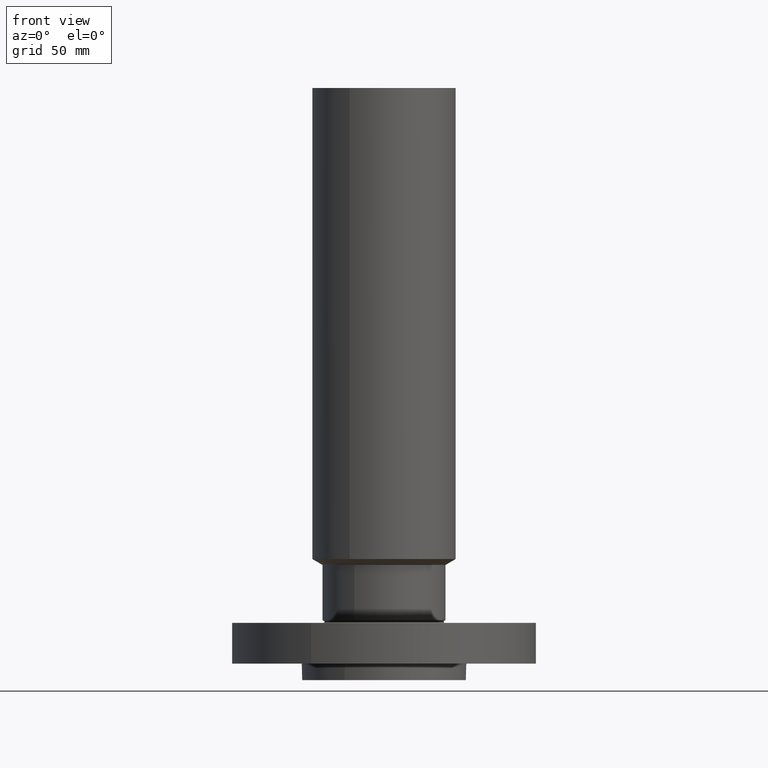
[diagram: clean part render]
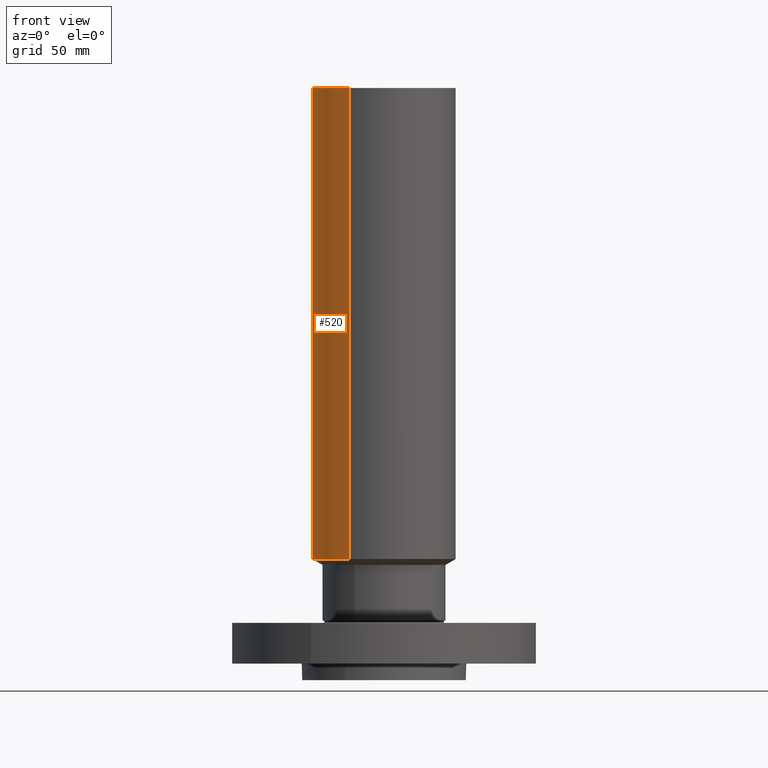
[diagram: same view with one face highlighted and labeled with its STEP entity id]
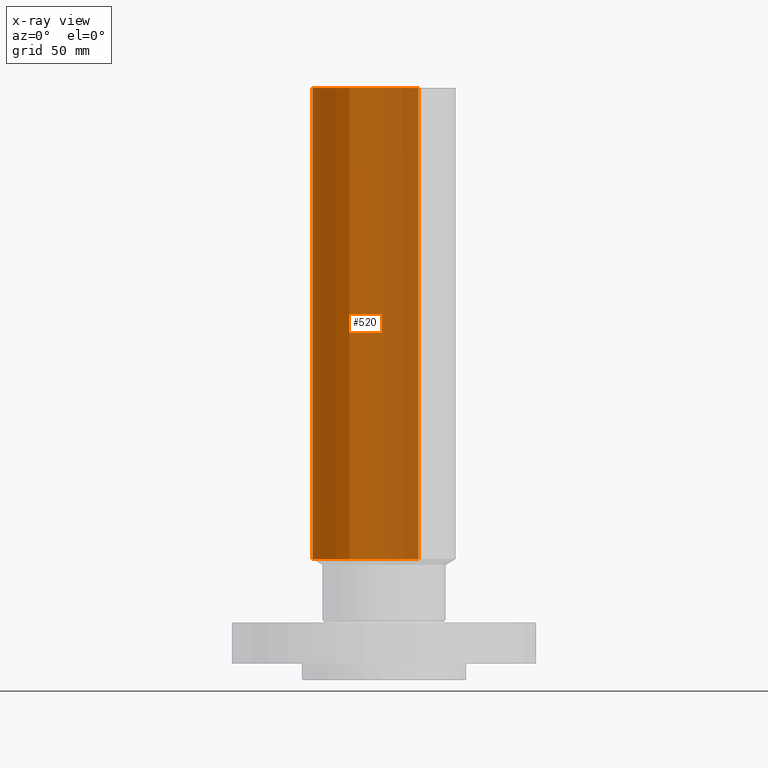
[diagram: x-ray of the same camera — body ghosted, the highlighted face saturated]
A machine part, front view. The second image highlights one B-rep face of the part: STEP entity #520.
The next image is the same camera in x-ray: the body ghosted, the highlighted face saturated — about 65% of this face is hidden behind the body in this view.
In plain terms, the highlighted cylindrical surface (partial cylindrical patch) has radius 27.813 mm, axis along (0, 0, -1).
Its self-contained STEP definition (entity closure, byte-faithful):
#468=AXIS2_PLACEMENT_3D('Circle Axis2P3D',#466,#467,$) ;
#481=AXIS2_PLACEMENT_3D('Cylinder Axis2P3D',#478,#479,#480) ;
#511=AXIS2_PLACEMENT_3D('Circle Axis2P3D',#509,#510,$) ;
#444=CARTESIAN_POINT('Vertex',(0.524970964774,0.960952905274,1.58948929173)) ;
#451=CARTESIAN_POINT('Vertex',(-0.524970964774,-0.960952905274,1.58948929173)) ;
#466=CARTESIAN_POINT('Axis2P3D Location',(0.,0.,1.58948929173)) ;
#478=CARTESIAN_POINT('Axis2P3D Location',(0.,0.,4.25000000002)) ;
#483=CARTESIAN_POINT('Line Origine',(0.524970964774,0.960952905274,5.16974464588)) ;
#487=CARTESIAN_POINT('Vertex',(0.524970964774,0.960952905274,8.75000000004)) ;
#494=CARTESIAN_POINT('Vertex',(-0.524970964774,-0.960952905274,8.75000000004)) ;
#497=CARTESIAN_POINT('Line Origine',(-0.524970964774,-0.960952905274,5.16974464588)) ;
#509=CARTESIAN_POINT('Axis2P3D Location',(0.,0.,8.75000000003)) ;
#467=DIRECTION('Axis2P3D Direction',(-0.,0.,0.0393700787402)) ;
#479=DIRECTION('Axis2P3D Direction',(0.,0.,-0.0393700787402)) ;
#480=DIRECTION('Axis2P3D XDirection',(-0.0188750212049,-0.0345504945626,0.)) ;
#484=DIRECTION('Vector Direction',(0.,0.,-0.0393700787402)) ;
#498=DIRECTION('Vector Direction',(0.,0.,-0.0393700787402)) ;
#510=DIRECTION('Axis2P3D Direction',(0.,0.,-0.0393700787402)) ;
#485=VECTOR('Line Direction',#484,0.0393700787402) ;
#499=VECTOR('Line Direction',#498,0.0393700787402) ;
#515=ORIENTED_EDGE('',*,*,#470,.F.) ;
#516=ORIENTED_EDGE('',*,*,#501,.T.) ;
#517=ORIENTED_EDGE('',*,*,#513,.T.) ;
#518=ORIENTED_EDGE('',*,*,#489,.F.) ;
#520=ADVANCED_FACE('PartBody',(#519),#482,.T.) ;
#469=CIRCLE('generated circle',#468,1.095) ;
#512=CIRCLE('generated circle',#511,1.095) ;
#482=CYLINDRICAL_SURFACE('generated cylinder',#481,1.095) ;
#470=EDGE_CURVE('',#452,#445,#469,.F.) ;
#489=EDGE_CURVE('',#445,#488,#486,.F.) ;
#501=EDGE_CURVE('',#452,#495,#500,.F.) ;
#513=EDGE_CURVE('',#495,#488,#512,.T.) ;
#514=EDGE_LOOP('',(#515,#516,#517,#518)) ;
#519=FACE_OUTER_BOUND('',#514,.T.) ;
#486=LINE('Line',#483,#485) ;
#500=LINE('Line',#497,#499) ;
#445=VERTEX_POINT('',#444) ;
#452=VERTEX_POINT('',#451) ;
#488=VERTEX_POINT('',#487) ;
#495=VERTEX_POINT('',#494) ;